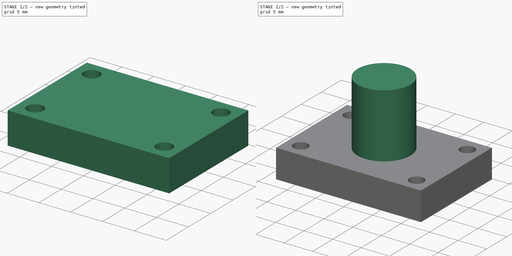
[diagram: build sequence overview — one tinted view per stage of 2, left to right]
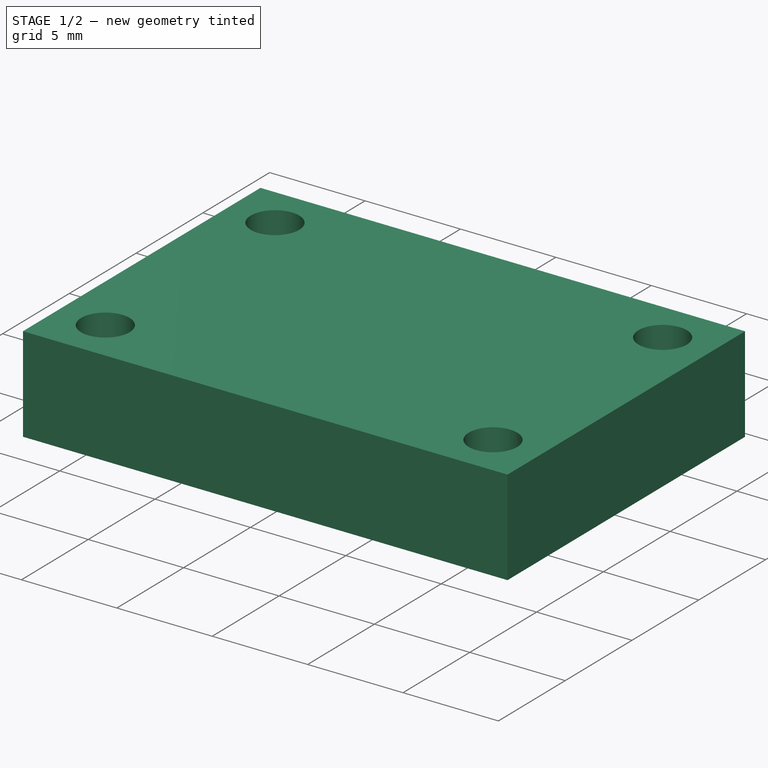
[diagram: stage 1 of 2 — iso view after this stage's code; geometry added in this stage tinted green]
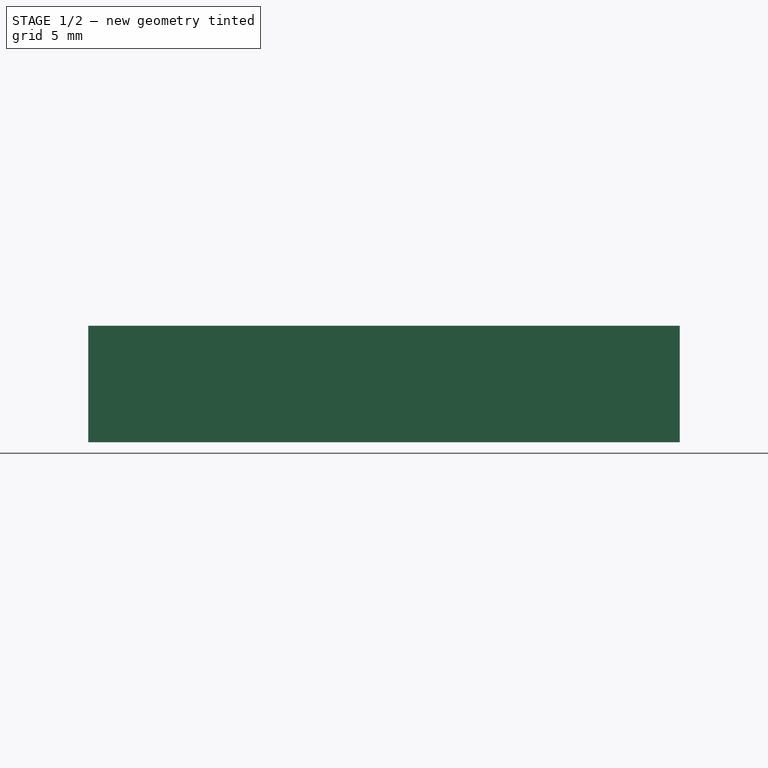
[diagram: stage 1 of 2 — front view after this stage's code; geometry added in this stage tinted green]
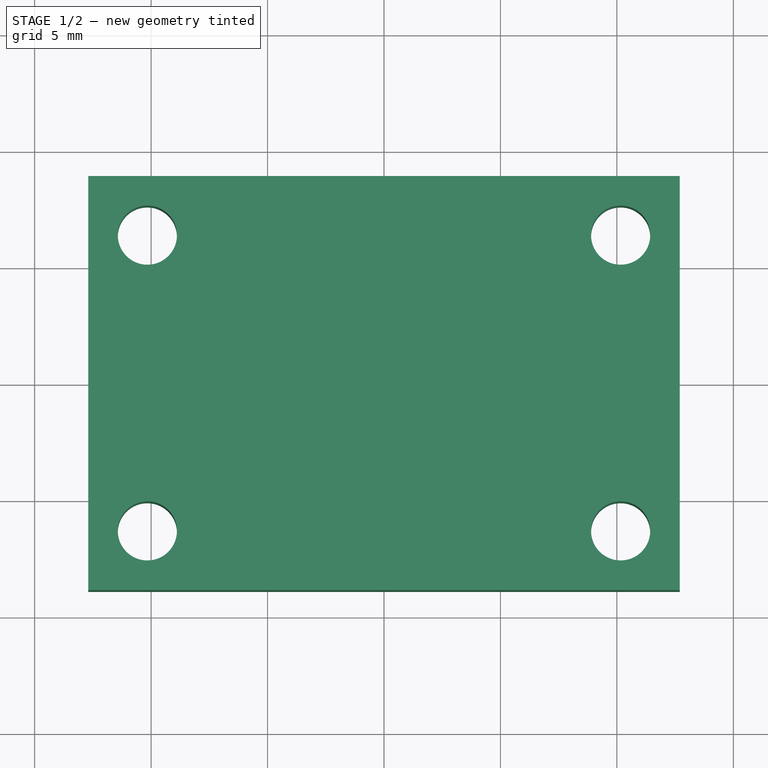
[diagram: stage 1 of 2 — top view after this stage's code; geometry added in this stage tinted green]
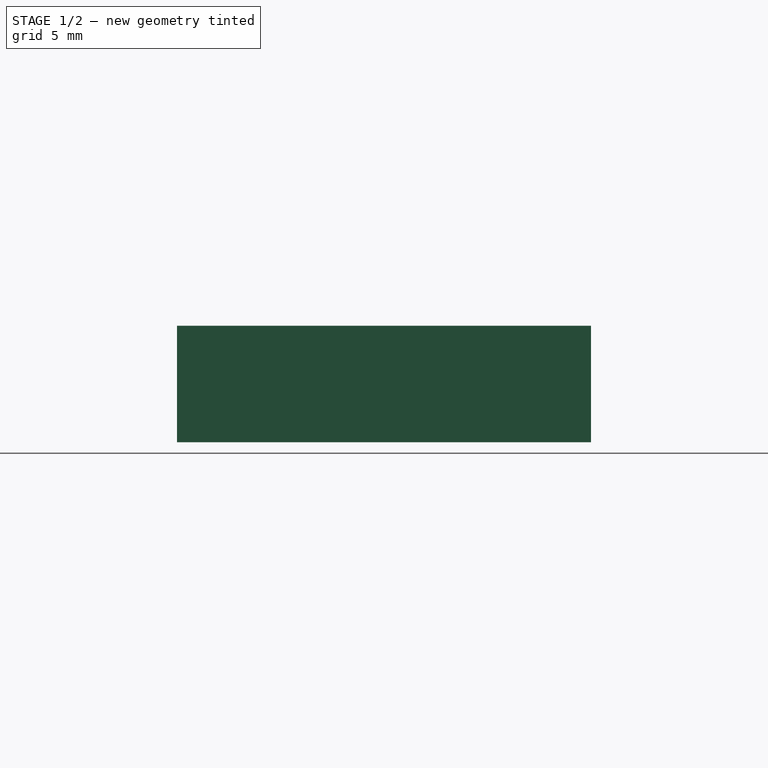
[diagram: stage 1 of 2 — right view after this stage's code; geometry added in this stage tinted green]
FCSTD DOCUMENT  (FreeCAD 0.21R33668 +26 (Git))
Label: MLX90640
License: All rights reserved
LicenseURL: http://en.wikipedia.org/wiki/All_rights_reserved
objects: App::DocumentObjectGroup×3, Sketcher::SketchObject×2, PartDesign::Pad×2, PartDesign::CoordinateSystem×2, PartDesign::Body×1, Spreadsheet::Sheet×1, App::FeaturePython×1, App::Part×1
note: 9 computed .brp shape members not serialized (recipe doc carries the construction recipe); baked Part::Feature solids carry a one-line shape summary decoded from their .brp

FEATURE [Sketcher::SketchObject] Sketch
  FullyConstrained = true
  MapMode = 5
  Support = -> [XY_Plane]
  expr: Constraints[12] = <<Spreadsheet>>.holes_Vdist
  expr: Constraints[13] = <<Spreadsheet>>.holes_Hdist
  expr: Constraints[14] = <<Spreadsheet>>.holes_rad
  expr: Constraints[15] = <<Spreadsheet>>.holes_rad
  expr: Constraints[16] = <<Spreadsheet>>.holes_rad
  expr: Constraints[17] = <<Spreadsheet>>.holes_rad
  expr: Constraints[7] = <<Spreadsheet>>.board_width
  expr: Constraints[8] = <<Spreadsheet>>.board_height
  sketch-geometry (8):
    g0: LineSegment StartX=-12.7 StartY=8.89 StartZ=0 EndX=12.7 EndY=8.89 EndZ=0
    g1: LineSegment StartX=12.7 StartY=8.89 StartZ=0 EndX=12.7 EndY=-8.89 EndZ=0
    g2: LineSegment StartX=12.7 StartY=-8.89 StartZ=0 EndX=-12.7 EndY=-8.89 EndZ=0
    g3: LineSegment StartX=-12.7 StartY=-8.89 StartZ=0 EndX=-12.7 EndY=8.89 EndZ=0
    g4: Circle CenterX=-10.16 CenterY=6.35 CenterZ=0 NormalX=0 NormalY=0 NormalZ=1 AngleXU=0 Radius=1.27
    g5: Circle CenterX=10.16 CenterY=6.35 CenterZ=0 NormalX=0 NormalY=0 NormalZ=1 AngleXU=0 Radius=1.27
    g6: Circle CenterX=10.16 CenterY=-6.35 CenterZ=0 NormalX=0 NormalY=0 NormalZ=1 AngleXU=0 Radius=1.27
    g7: Circle CenterX=-10.16 CenterY=-6.35 CenterZ=0 NormalX=0 NormalY=0 NormalZ=1 AngleXU=0 Radius=1.27
  constraints (18):
    c: Coincident(g0,g1)
    c: Coincident(g1,g2)
    c: Coincident(g2,g3)
    c: Coincident(g3,g0)
    c: Symmetric(g0,g2,g-1)
    c: Symmetric(g0,g0,g-2)
    c: Symmetric(g0,g1,g-1)
    c: DistanceX(g0,g0) = 25.4
    c: DistanceY(g3,g3) = 17.78
    c: Symmetric(g4,g5,g-2)
    c: Symmetric(g4,g7,g-1)
    c: Symmetric(g4,g6,g-1)
    c: DistanceY(g7,g4) = 12.7
    c: DistanceX(g4,g5) = 20.32
    c: Radius(g4) = 1.27
    c: Radius(g5) = 1.27
    c: Radius(g7) = 1.27
    c: Radius(g6) = 1.27
FEATURE [PartDesign::Pad] Pad
  Direction = (0,0,1)
  Length = 5
  Length2 = 10
  Profile = -> Sketch
  ReferenceAxis = -> Sketch [N_Axis]
  Reversed = true
  Type = 0
  expr: Length = 5
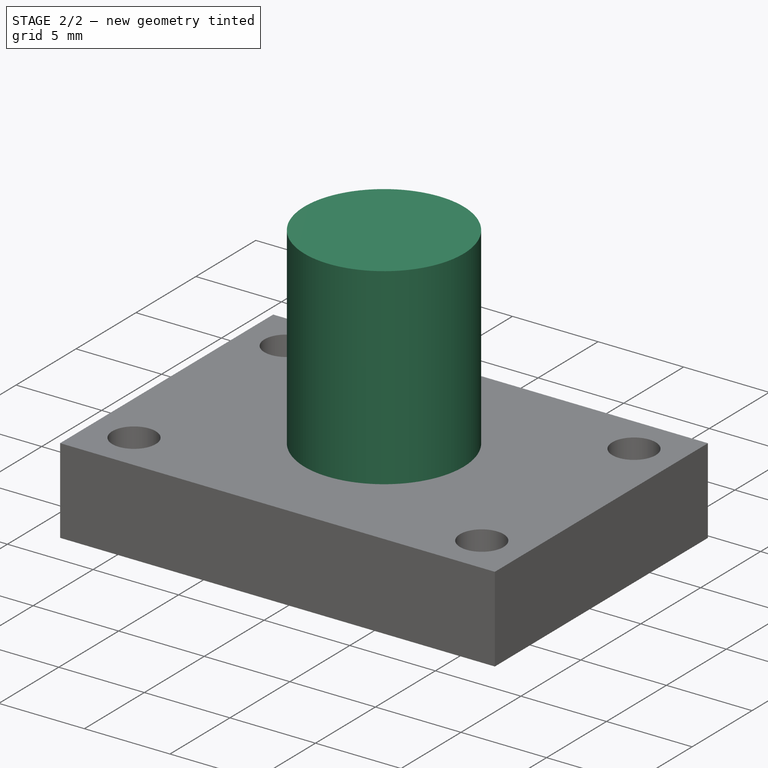
[diagram: stage 2 of 2 — iso view after this stage's code; geometry added in this stage tinted green]
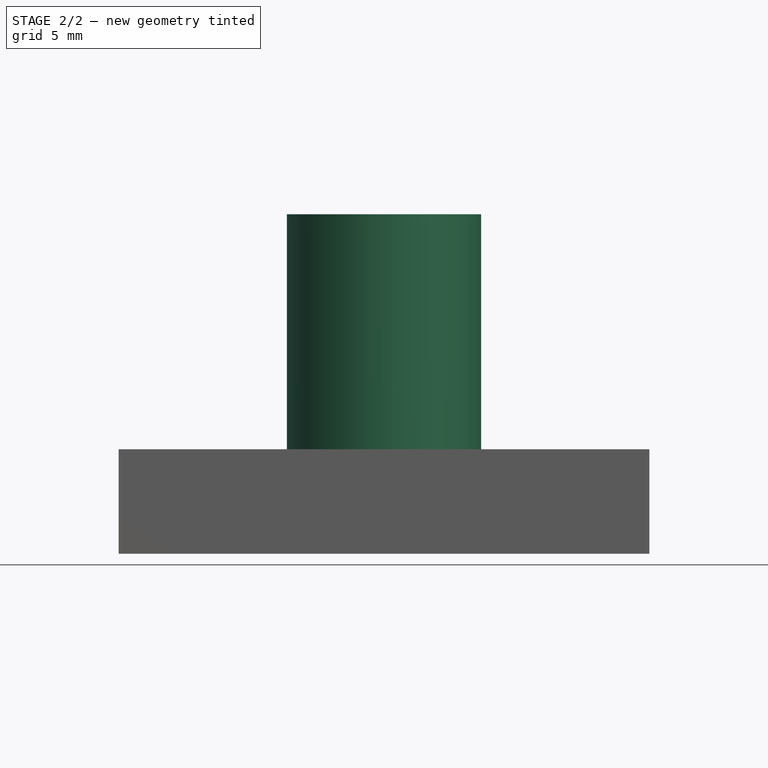
[diagram: stage 2 of 2 — front view after this stage's code; geometry added in this stage tinted green]
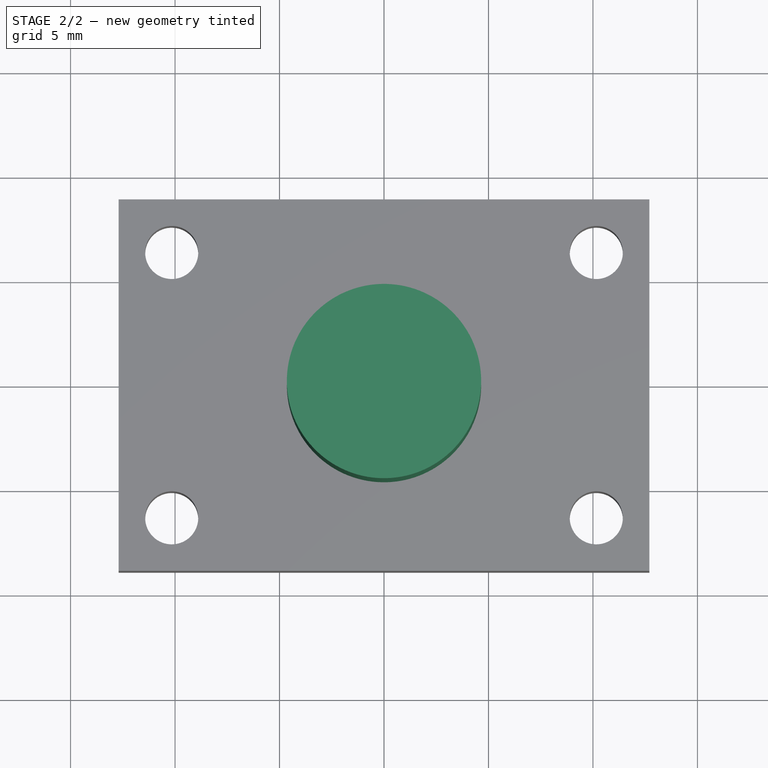
[diagram: stage 2 of 2 — top view after this stage's code; geometry added in this stage tinted green]
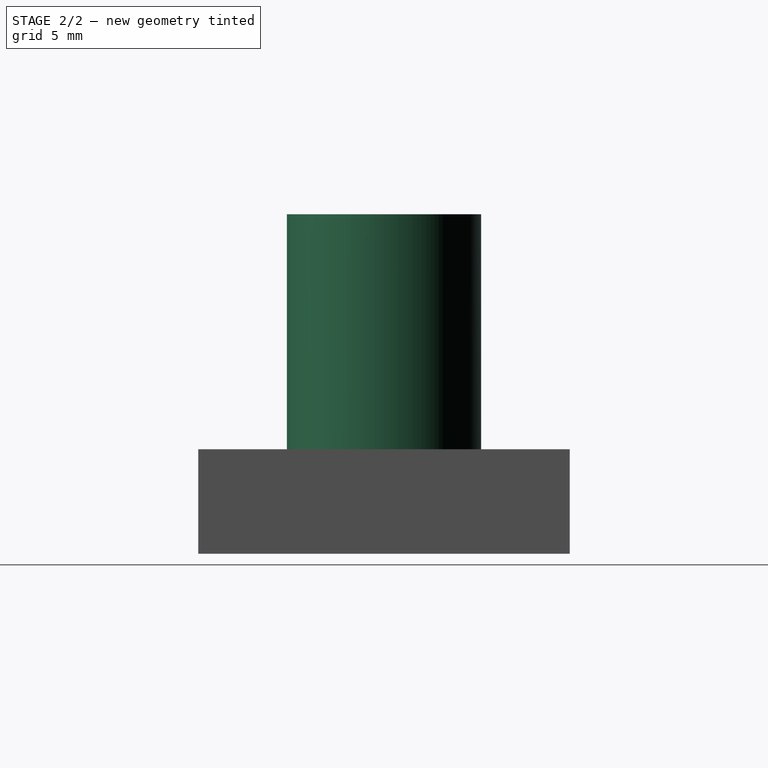
[diagram: stage 2 of 2 — right view after this stage's code; geometry added in this stage tinted green]
FEATURE [Sketcher::SketchObject] Sketch001
  FullyConstrained = true
  MapMode = 5
  Support = -> [XY_Plane]
  expr: Constraints[1] = <<Spreadsheet>>.cam_rad
  sketch-geometry (1):
    g0: Circle CenterX=0 CenterY=0 CenterZ=0 NormalX=0 NormalY=0 NormalZ=1 AngleXU=0 Radius=4.65
  constraints (2):
    c: Coincident(g0,g-1)
    c: Radius(g0) = 4.65
FEATURE [PartDesign::Pad] Pad001
  BaseFeature = -> Pad
  Direction = (0,0,1)
  Length = 11.25
  Length2 = 10
  Profile = -> Sketch001
  ReferenceAxis = -> Sketch001 [N_Axis]
  Type = 0
  expr: Length = <<Spreadsheet>>.cam_height
FEATURE [PartDesign::Body] Body
  Group = -> [Sketch,Pad,Sketch001,Pad001]
  Origin = -> Origin
  Tip = -> Pad001
FEATURE [Spreadsheet::Sheet] Spreadsheet
  cells = B2='MLX; B3='board_factor; C3(board_factor)=25.4; B4='board_width; C4(board_width)==board_factor * 1 mm; B5='board_height; C5(board_height)==board_factor * 0.7 mm; B6='holes_rad; C6(holes_rad)==board_factor * 0.1 mm / 2; B7='holes_Hdist; C7(holes_Hdist)==board_factor * 0.8 mm; B8='holes_Vdist; C8(holes_Vdist)==board_factor * 0.5 mm; B9='cam_rad; C9(cam_rad)==9.3 mm / 2; B10='cam_height; C10(cam_height)==11.25 mm
FEATURE [App::DocumentObjectGroup] Parts
FEATURE [PartDesign::CoordinateSystem] LCS_Origin
  AttacherType = Attacher::AttachEngine3D
  MapMode = 2
  Support = -> [X_Axis001]
FEATURE [App::DocumentObjectGroup] Constraints
FEATURE [App::FeaturePython] Variables  # WARN: FeaturePython — macro-defined, semantics opaque (R4)
  Type = App::PropertyContainer
FEATURE [App::DocumentObjectGroup] Configurations
FEATURE [PartDesign::CoordinateSystem] LCS_mlx
  AttacherType = Attacher::AttachEngine3D
  MapMode = 11
  Placement = pos=(-10.16,6.35,-5) rot=(0,0,1;1.5708rad)
  Support = -> [Pad001]
FEATURE [App::Part] Model
  AssemblyType = Part::Link
  Group = -> [LCS_Origin,Constraints,Variables,Configurations,Body,LCS_mlx]
  Origin = -> Origin001
  Type = Assembly
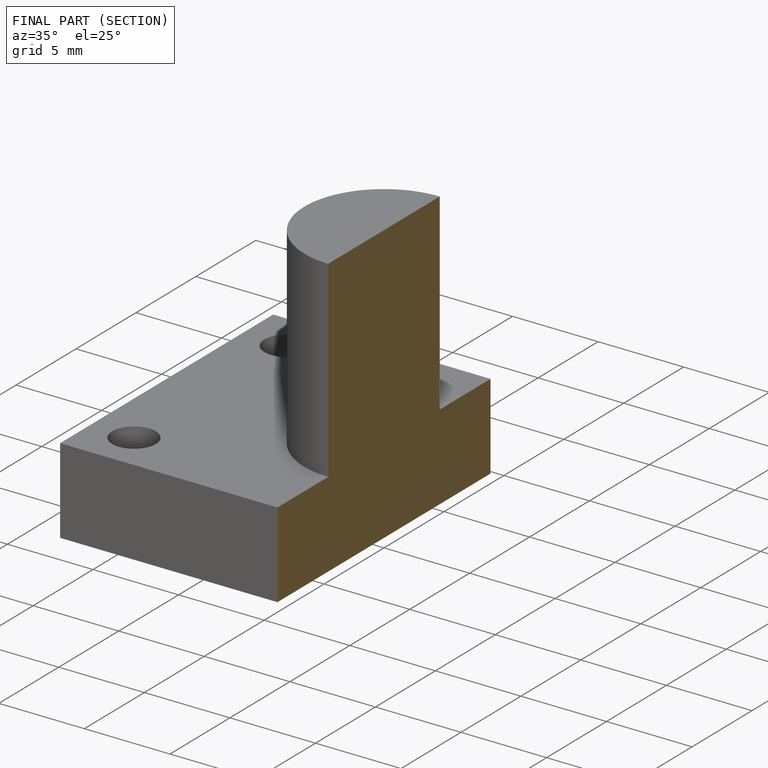
[diagram: finished part — half-section view (interior)]
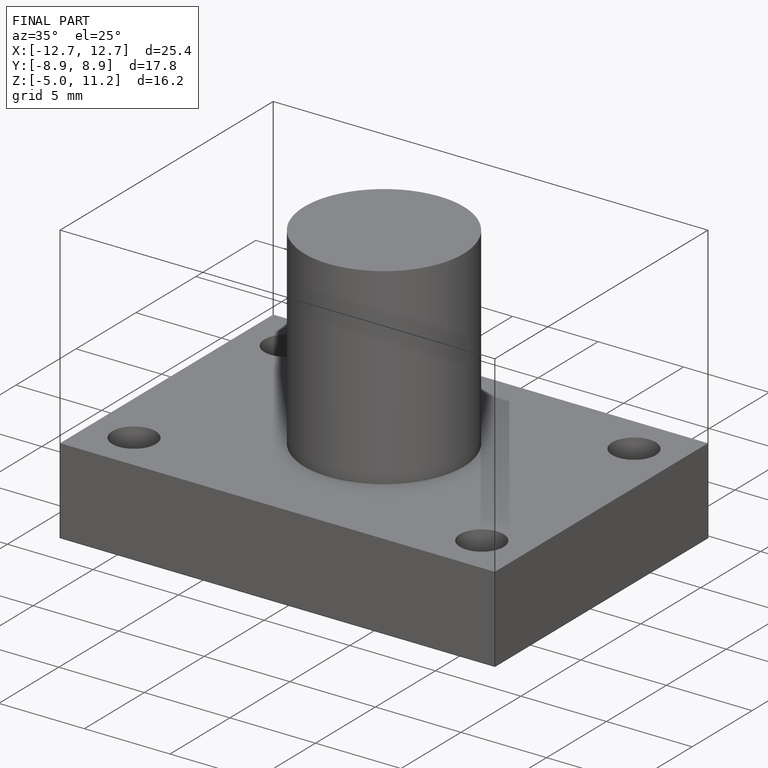
[diagram: finished part — iso view with bounding-box wireframe]
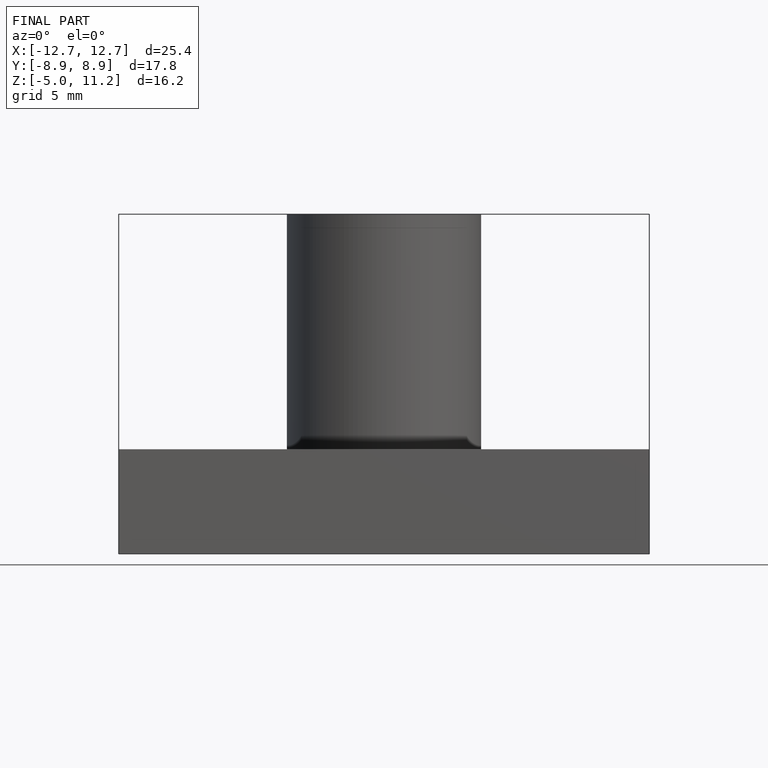
[diagram: finished part — front view with bounding-box wireframe]
